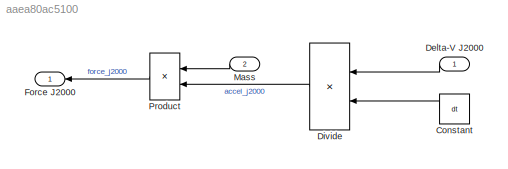
MODEL slx_aaea80ac5100
KIND model
CONFIG AbsTol = auto
CONFIG EnableMultiTasking = off
CONFIG FixedStep = dt
CONFIG MaxStep = auto
CONFIG MinStep = auto
CONFIG RelTol = 1e-3
CONFIG SampleTimeConstraint = Unconstrained
CONFIG SolverName = ode4
CONFIG StartTime = 0.0
CONFIG StopTime = 10.0
BLOCK [Constant] Constant
  Value = dt
BLOCK [Inport] Delta-V J2000
  PortDimensions = 3
BLOCK [Product] Divide
  Inputs = */
BLOCK [Outport] Force J2000
  PortDimensions = 3
BLOCK [Inport] Mass
  Port = 2
BLOCK [Product] Product
LINE Constant:1 -> Divide:2
LINE Delta-V J2000:1 -> Divide:1
LINE Divide:1 -> Product:2
LINE Mass:1 -> Product:1
LINE Product:1 -> Force J2000:1
